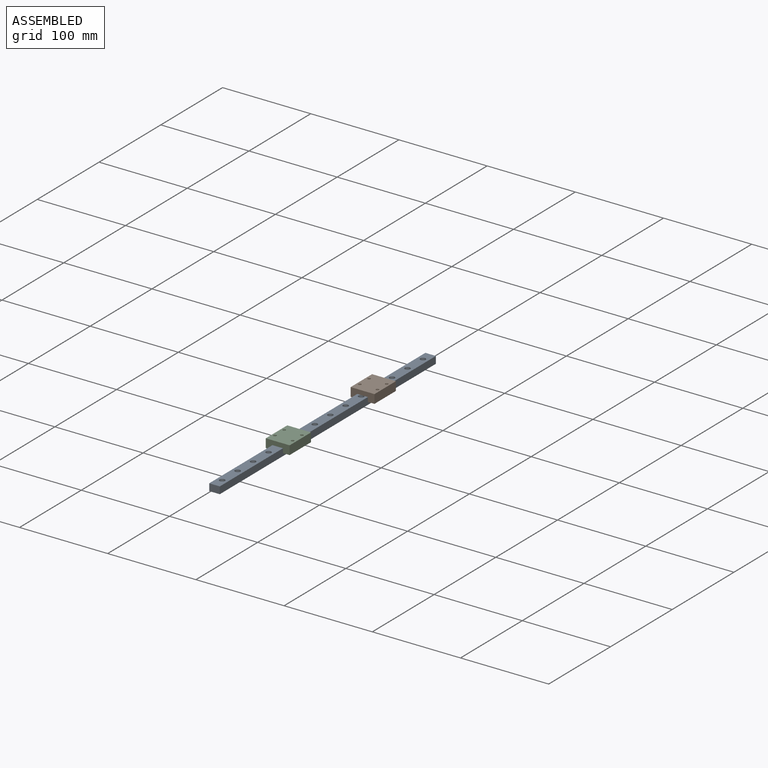
[diagram: assembled view]
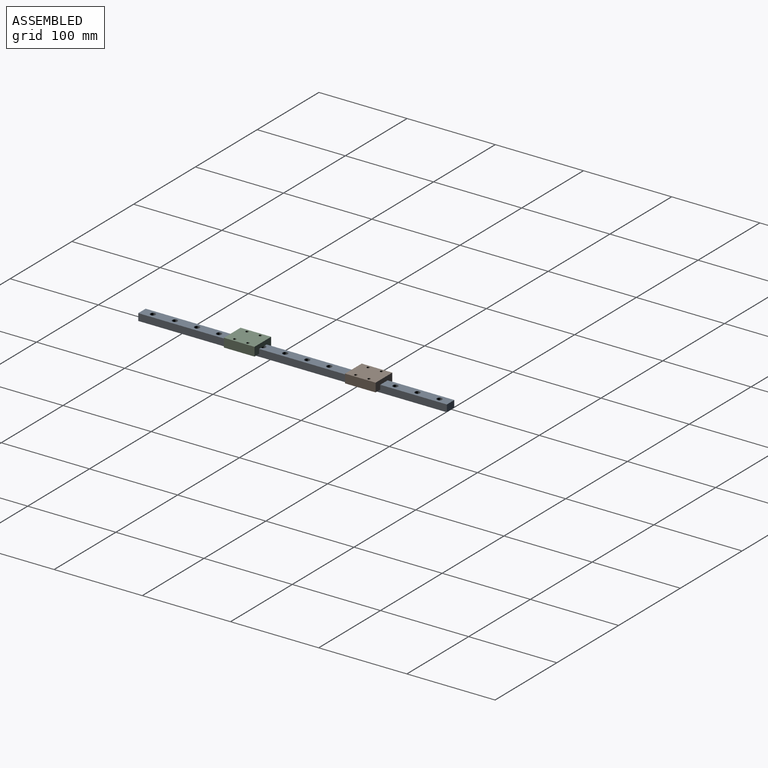
[diagram: assembled view, second angle]
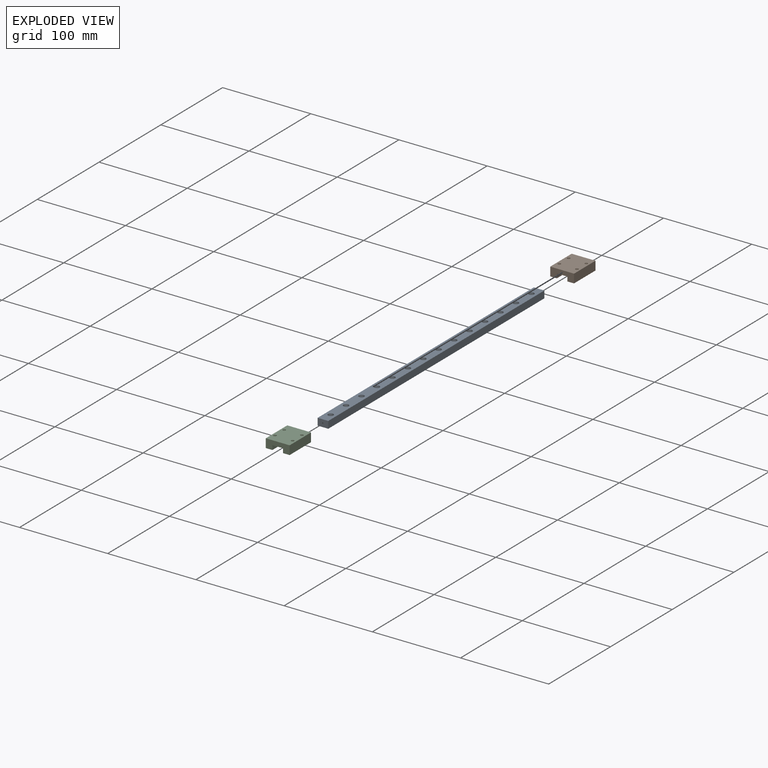
[diagram: exploded view]
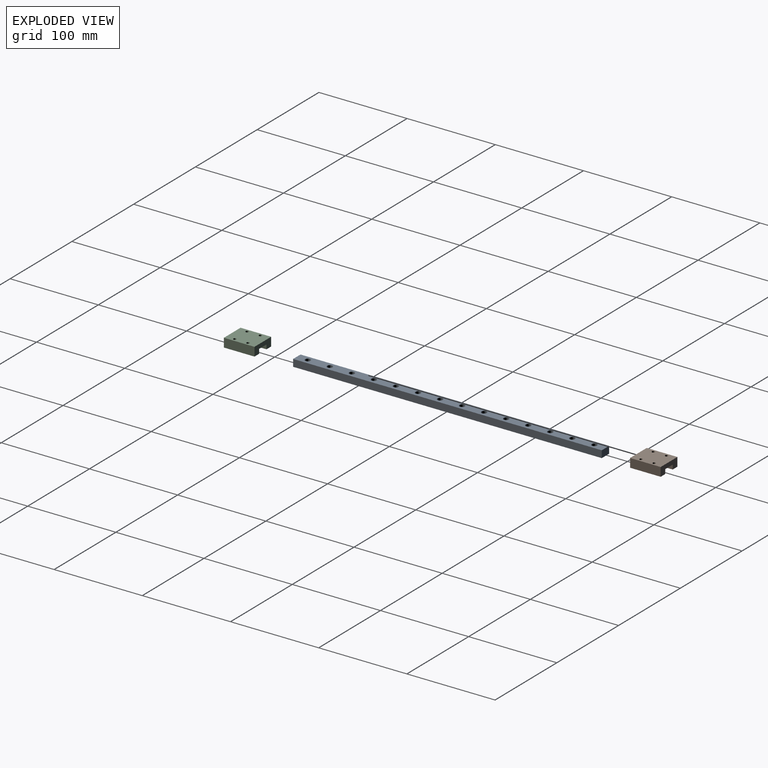
[diagram: exploded view, second angle]
ASSEMBLY  parts=3 mates=2
PART A: 48 faces, bbox 12x350x8 mm
  f0: plane 350x12mm, normal (0,0,-1), area 4065.3mm2, adj f1,f3,f4,f5,f6,f9,f12,f15
  f1: plane 350x8mm, normal (1,0,0), area 2800mm2, adj f0,f2,f4,f5
  f2: plane 350x12mm, normal (0,0,1), area 3804.2mm2, adj f1,f3,f4,f5,f8,f11,f14,f17
  f3: plane 350x8mm, normal (-1,0,0), area 2800mm2, adj f0,f2,f4,f5
  f4: plane 12x8mm, normal (0,-1,0), area 96mm2, adj f0,f1,f2,f3
  f5: plane 12x8mm, normal (0,1,0), area 96mm2, adj f0,f1,f2,f3
  f6: cylinder r=1.75mm len=5mm, axis (0,0,1), area 55mm2, adj f0,f7
  f7: plane 6x6mm, normal (0,0,1), area 18.7mm2, adj f6,f8
  f8: cylinder r=3mm len=6mm, axis (0,0,1), area 56.5mm2, adj f2,f7
  f9: cylinder r=1.75mm len=5mm, axis (0,0,1), area 55mm2, adj f0,f10
  f10: plane 6x6mm, normal (0,0,1), area 18.7mm2, adj f9,f11
  f11: cylinder r=3mm len=6mm, axis (0,0,1), area 56.5mm2, adj f2,f10
  f12: cylinder r=1.75mm len=5mm, axis (0,0,1), area 55mm2, adj f0,f13
  f13: plane 6x6mm, normal (0,0,1), area 18.7mm2, adj f12,f14
  f14: cylinder r=3mm len=6mm, axis (0,0,1), area 56.5mm2, adj f2,f13
  f15: cylinder r=1.75mm len=5mm, axis (0,0,1), area 55mm2, adj f0,f16
  f16: plane 6x6mm, normal (0,0,1), area 18.7mm2, adj f15,f17
  f17: cylinder r=3mm len=6mm, axis (0,0,1), area 56.5mm2, adj f2,f16
  f18: cylinder r=1.75mm len=5mm, axis (0,0,1), area 55mm2, adj f0,f19
  f19: plane 6x6mm, normal (0,0,1), area 18.7mm2, adj f18,f20
  f20: cylinder r=3mm len=6mm, axis (0,0,1), area 56.5mm2, adj f2,f19
  f21: cylinder r=1.75mm len=5mm, axis (0,0,1), area 55mm2, adj f0,f22
  f22: plane 6x6mm, normal (0,0,1), area 18.7mm2, adj f21,f23
  f23: cylinder r=3mm len=6mm, axis (0,0,1), area 56.5mm2, adj f2,f22
  f24: cylinder r=1.75mm len=5mm, axis (0,0,1), area 55mm2, adj f0,f25
  f25: plane 6x6mm, normal (0,0,1), area 18.7mm2, adj f24,f26
  f26: cylinder r=3mm len=6mm, axis (0,0,1), area 56.5mm2, adj f2,f25
  f27: cylinder r=1.75mm len=5mm, axis (0,0,1), area 55mm2, adj f0,f28
  f28: plane 6x6mm, normal (0,0,1), area 18.7mm2, adj f27,f29
  f29: cylinder r=3mm len=6mm, axis (0,0,1), area 56.5mm2, adj f2,f28
  f30: cylinder r=1.75mm len=5mm, axis (0,0,1), area 55mm2, adj f0,f31
  f31: plane 6x6mm, normal (0,0,1), area 18.7mm2, adj f30,f32
  f32: cylinder r=3mm len=6mm, axis (0,0,1), area 56.5mm2, adj f2,f31
  f33: cylinder r=1.75mm len=5mm, axis (0,0,1), area 55mm2, adj f0,f34
  f34: plane 6x6mm, normal (0,0,1), area 18.7mm2, adj f33,f35
  f35: cylinder r=3mm len=6mm, axis (0,0,1), area 56.5mm2, adj f2,f34
  f36: cylinder r=1.75mm len=5mm, axis (0,0,1), area 55mm2, adj f0,f37
  f37: plane 6x6mm, normal (0,0,1), area 18.7mm2, adj f36,f38
  f38: cylinder r=3mm len=6mm, axis (0,0,1), area 56.5mm2, adj f2,f37
  f39: cylinder r=1.75mm len=5mm, axis (0,0,1), area 55mm2, adj f0,f40
  f40: plane 6x6mm, normal (0,0,1), area 18.7mm2, adj f39,f41
  f41: cylinder r=3mm len=6mm, axis (0,0,1), area 56.5mm2, adj f2,f40
  f42: cylinder r=1.75mm len=5mm, axis (0,0,1), area 55mm2, adj f0,f43
  f43: plane 6x6mm, normal (0,0,1), area 18.7mm2, adj f42,f44
  f44: cylinder r=3mm len=6mm, axis (0,0,1), area 56.5mm2, adj f2,f43
  f45: cylinder r=1.75mm len=5mm, axis (0,0,1), area 55mm2, adj f0,f46
  f46: plane 6x6mm, normal (0,0,1), area 18.7mm2, adj f45,f47
  f47: cylinder r=3mm len=6mm, axis (0,0,1), area 56.5mm2, adj f2,f46
PART B: 18 faces, bbox 27x34.7x10 mm
  f0: plane 34.7x27mm, normal (0,0,1), area 902.7mm2, adj f1,f7,f8,f9,f11,f13,f15,f17
  f1: plane 34.7x10mm, normal (-1,0,0), area 347mm2, adj f0,f2,f8,f9
  f2: plane 34.7x7.5mm, normal (0,0,-1), area 260.2mm2, adj f1,f3,f8,f9
  f3: plane 34.7x5mm, normal (1,0,0), area 173.5mm2, adj f2,f4,f8,f9
  f4: plane 34.7x12mm, normal (0,0,-1), area 416.4mm2, adj f3,f5,f8,f9
  f5: plane 34.7x5mm, normal (-1,0,0), area 173.5mm2, adj f4,f6,f8,f9
  f6: plane 34.7x7.5mm, normal (0,0,-1), area 260.2mm2, adj f5,f7,f8,f9
  f7: plane 34.7x10mm, normal (1,0,0), area 347mm2, adj f0,f6,f8,f9
  f8: plane 27x10mm, normal (0,-1,0), area 210mm2, adj f0,f1,f2,f3,f4,f5,f6,f7
  f9: plane 27x10mm, normal (0,1,0), area 210mm2, adj f0,f1,f2,f3,f4,f5,f6,f7
  f10: cone r=0mm half-angle=59deg, axis (0,0,1), area 10mm2, adj f11
  f11: cylinder r=1.65mm len=3.5mm, axis (0,0,1), area 36.3mm2, adj f0,f10
  f12: cone r=0mm half-angle=59deg, axis (0,0,1), area 10mm2, adj f13
  f13: cylinder r=1.65mm len=3.5mm, axis (0,0,1), area 36.3mm2, adj f0,f12
  f14: cone r=0mm half-angle=59deg, axis (0,0,1), area 10mm2, adj f15
  f15: cylinder r=1.65mm len=3.5mm, axis (0,0,1), area 36.3mm2, adj f0,f14
  f16: cone r=0mm half-angle=59deg, axis (0,0,1), area 10mm2, adj f17
  f17: cylinder r=1.65mm len=3.5mm, axis (0,0,1), area 36.3mm2, adj f0,f16
PART C: same geometry as B
PLACE A t=(11.01,132.22,-4.96)mm fixed
PLACE B t=(11.01,214.31,-2.01)mm
PLACE C t=(11.01,76.93,-2.01)mm
MATE slider A.f4 <-> C.f8  axis (0,-1,0) through (11.01,-42.78,-0.96)mm
MATE slider A.f4 <-> B.f8  axis (0,-1,0) through (11.01,-42.78,-0.96)mm
